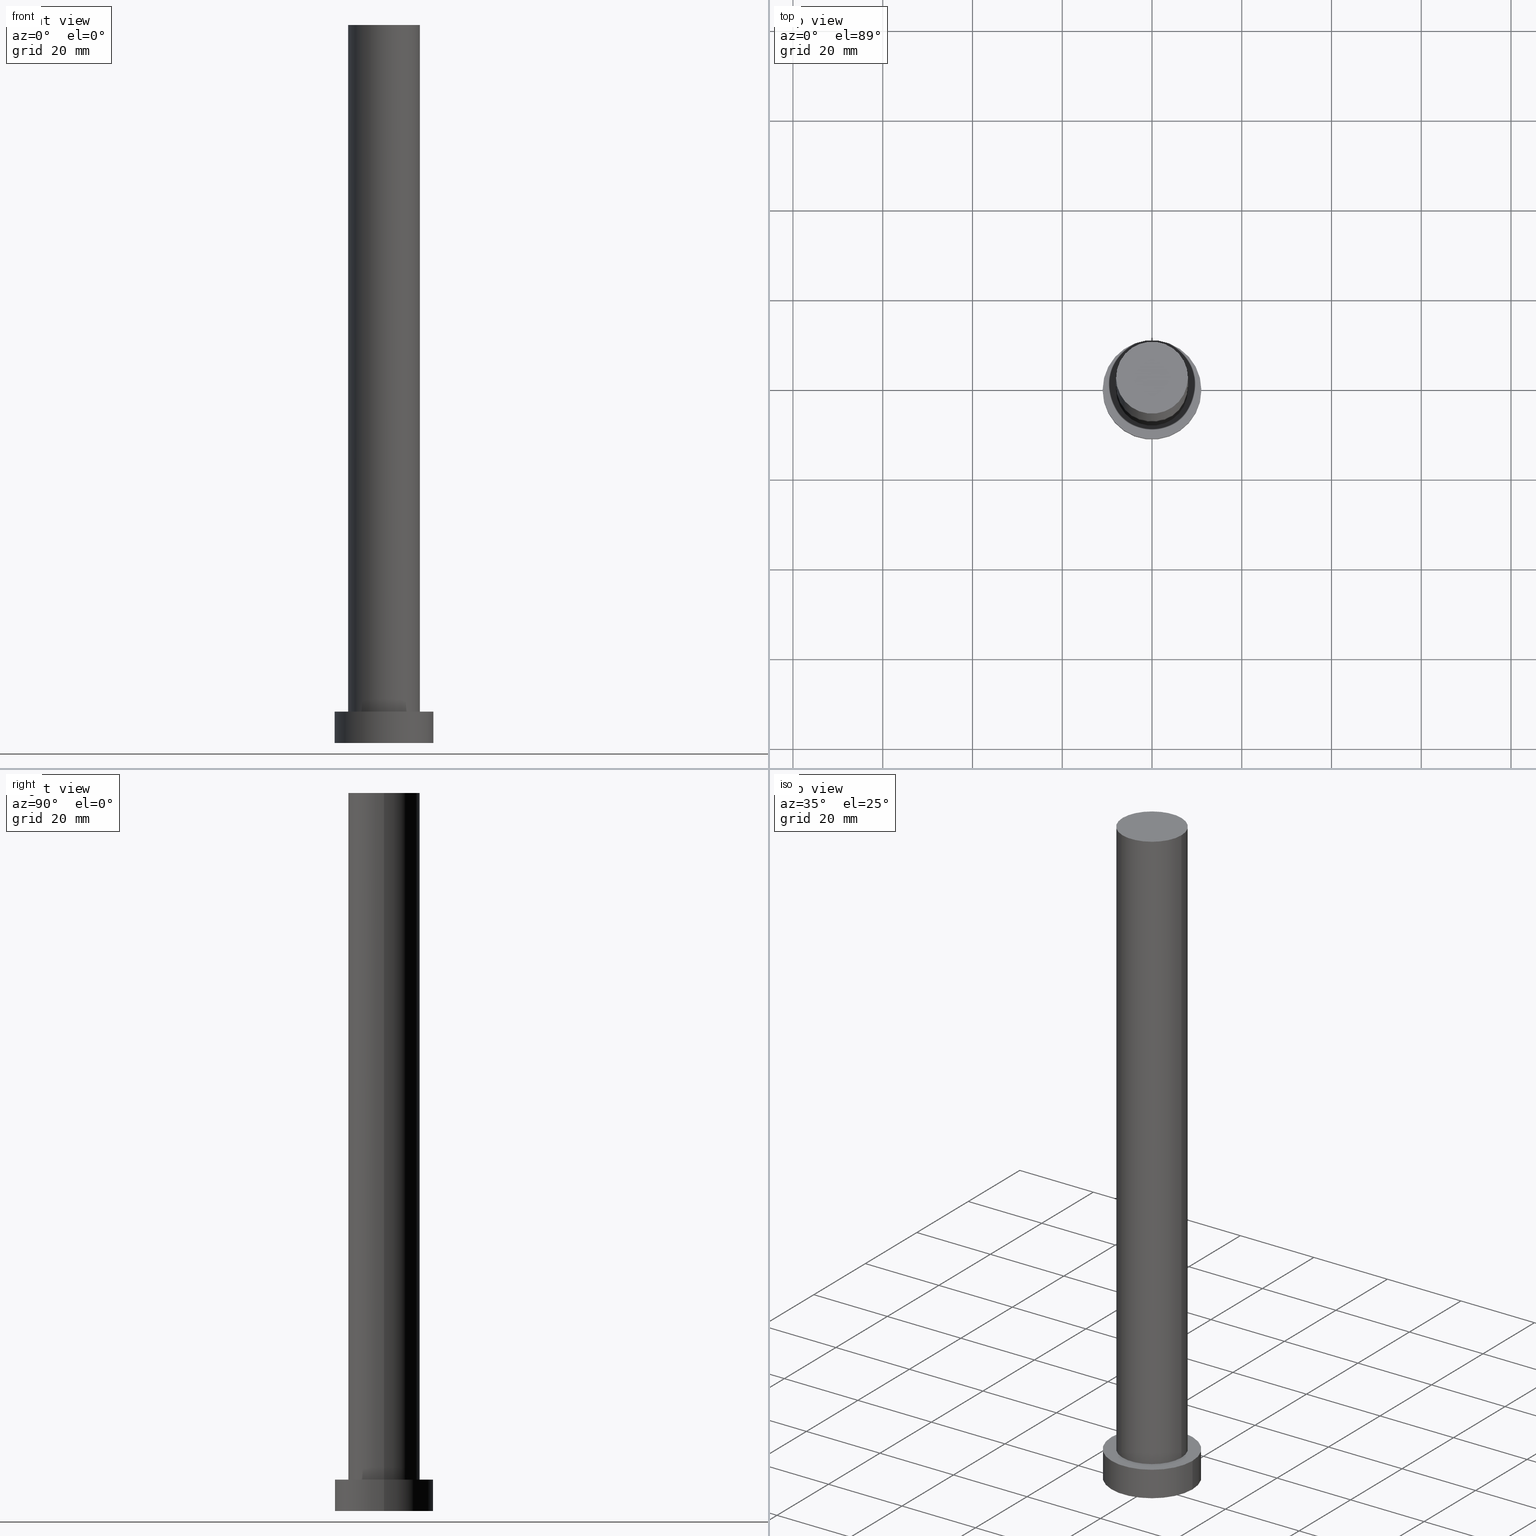
[diagram: canonical four-view strip — front | top / right | iso, engineering-drawing reading convention]
A machine part, canonical four-view strip (front | top / right | iso — engineering-drawing reading convention). The complete STEP part file that produces these views, byte-faithful:
ISO-10303-21;
HEADER;
FILE_DESCRIPTION (( 'STEP AP203' ),
    '1' );
FILE_NAME ('5d08.STEP',
    '2023-02-13T08:53:09',
    ( '' ),
    ( '' ),
    'SwSTEP 2.0',
    'SolidWorks 2019',
    '' );
FILE_SCHEMA (( 'CONFIG_CONTROL_DESIGN' ));
ENDSEC;

DATA;
#1 = CALENDAR_DATE ( 2023, 13, 2 ) ;
#2 = SECURITY_CLASSIFICATION ( '', '', #67 ) ;
#3 = PRODUCT ( '5d08', '5d08', '', ( #92 ) ) ;
#4 = APPLICATION_PROTOCOL_DEFINITION ( 'international standard', 'config_control_design', 1994, #172 ) ;
#5 = CC_DESIGN_SECURITY_CLASSIFICATION ( #2, ( #71 ) ) ;
#6 = DIRECTION ( 'NONE',  ( 0.000000000000000000, 0.000000000000000000, 1.000000000000000000 ) ) ;
#7 = PRODUCT_RELATED_PRODUCT_CATEGORY ( 'detail', '', ( #3 ) ) ;
#8 = APPROVAL_DATE_TIME ( #165, #134 ) ;
#9 = CYLINDRICAL_SURFACE ( 'NONE', #207, 11.00000000000000000 ) ;
#10 = DATE_TIME_ROLE ( 'classification_date' ) ;
#11 = DIRECTION ( 'NONE',  ( 1.000000000000000000, 0.000000000000000000, 0.000000000000000000 ) ) ;
#12 = ADVANCED_FACE ( 'NONE', ( #186 ), #229, .T. ) ;
#13 = FACE_OUTER_BOUND ( 'NONE', #57, .T. ) ;
#14 = CARTESIAN_POINT ( 'NONE',  ( 11.00000000000000000, 1.347111479062088405E-15, 0.000000000000000000 ) ) ;
#15 = DIRECTION ( 'NONE',  ( -0.000000000000000000, -0.000000000000000000, -1.000000000000000000 ) ) ;
#16 = DIRECTION ( 'NONE',  ( 1.000000000000000000, 0.000000000000000000, 0.000000000000000000 ) ) ;
#17 = EDGE_CURVE ( 'NONE', #79, #36, #147, .T. ) ;
#18 =( LENGTH_UNIT ( ) NAMED_UNIT ( * ) SI_UNIT ( .MILLI., .METRE. ) );
#19 = ORIENTED_EDGE ( 'NONE', *, *, #203, .F. ) ;
#20 = AXIS2_PLACEMENT_3D ( 'NONE', #140, #209, #84 ) ;
#21 = DIRECTION ( 'NONE',  ( 1.000000000000000000, 0.000000000000000000, -0.000000000000000000 ) ) ;
#22 = VECTOR ( 'NONE', #129, 1000.000000000000000 ) ;
#23 = ORIENTED_EDGE ( 'NONE', *, *, #232, .F. ) ;
#24 = EDGE_LOOP ( 'NONE', ( #116, #19, #164, #195 ) ) ;
#25 = LOCAL_TIME ( 9, 53, 9.000000000000000000, #236 ) ;
#26 = PERSON_AND_ORGANIZATION ( #43, #130 ) ;
#27 = DIRECTION ( 'NONE',  ( 1.000000000000000000, 0.000000000000000000, 0.000000000000000000 ) ) ;
#28 = CIRCLE ( 'NONE', #174, 8.000000000000000000 ) ;
#29 = LINE ( 'NONE', #213, #219 ) ;
#30 = CC_DESIGN_APPROVAL ( #139, ( #2 ) ) ;
#31 = LINE ( 'NONE', #150, #215 ) ;
#32 = DIRECTION ( 'NONE',  ( 0.000000000000000000, 0.000000000000000000, 1.000000000000000000 ) ) ;
#33 = CARTESIAN_POINT ( 'NONE',  ( 0.000000000000000000, 0.000000000000000000, 7.000000000000000000 ) ) ;
#34 = EDGE_CURVE ( 'NONE', #222, #54, #97, .T. ) ;
#35 = EDGE_LOOP ( 'NONE', ( #166, #23 ) ) ;
#36 = VERTEX_POINT ( 'NONE', #101 ) ;
#37 = VERTEX_POINT ( 'NONE', #103 ) ;
#38 = EDGE_CURVE ( 'NONE', #37, #46, #28, .T. ) ;
#39 = CARTESIAN_POINT ( 'NONE',  ( 0.000000000000000000, 0.000000000000000000, 7.000000000000000000 ) ) ;
#40 = CARTESIAN_POINT ( 'NONE',  ( 0.000000000000000000, 0.000000000000000000, 160.0000000000000000 ) ) ;
#41 = CC_DESIGN_PERSON_AND_ORGANIZATION_ASSIGNMENT ( #102, #98, ( #71 ) ) ;
#42 = CARTESIAN_POINT ( 'NONE',  ( 0.000000000000000000, 0.000000000000000000, 160.0000000000000000 ) ) ;
#43 = PERSON ( 'NEUR�EN�', 'NEUR�EN�', 'NEUR�EN�', ('NEUR�EN�'), ('NEUR�EN�'), ('NEUR�EN�') ) ;
#44 = ORIENTED_EDGE ( 'NONE', *, *, #17, .F. ) ;
#45 = AXIS2_PLACEMENT_3D ( 'NONE', #39, #119, #21 ) ;
#46 = VERTEX_POINT ( 'NONE', #65 ) ;
#47 = AXIS2_PLACEMENT_3D ( 'NONE', #230, #32, #16 ) ;
#48 = EDGE_CURVE ( 'NONE', #36, #79, #113, .T. ) ;
#49 = CALENDAR_DATE ( 2023, 13, 2 ) ;
#50 = DIRECTION ( 'NONE',  ( -1.000000000000000000, 0.000000000000000000, 0.000000000000000000 ) ) ;
#51 = SHAPE_DEFINITION_REPRESENTATION ( #55, #117 ) ;
#52 = DIRECTION ( 'NONE',  ( 1.000000000000000000, 0.000000000000000000, 0.000000000000000000 ) ) ;
#53 = CC_DESIGN_APPROVAL ( #134, ( #71 ) ) ;
#54 = VERTEX_POINT ( 'NONE', #14 ) ;
#55 = PRODUCT_DEFINITION_SHAPE ( 'NONE', 'NONE',  #93 ) ;
#56 = APPLICATION_PROTOCOL_DEFINITION ( 'international standard', 'config_control_design', 1994, #59 ) ;
#57 = EDGE_LOOP ( 'NONE', ( #85, #157 ) ) ;
#58 = AXIS2_PLACEMENT_3D ( 'NONE', #202, #188, #242 ) ;
#59 = APPLICATION_CONTEXT ( 'configuration controlled 3d designs of mechanical parts and assemblies' ) ;
#60 = EDGE_CURVE ( 'NONE', #68, #237, #239, .T. ) ;
#61 = APPROVAL_PERSON_ORGANIZATION ( #187, #134, #201 ) ;
#62 = EDGE_LOOP ( 'NONE', ( #82, #159, #96, #198 ) ) ;
#63 = CARTESIAN_POINT ( 'NONE',  ( 0.000000000000000000, 0.000000000000000000, 7.000000000000000000 ) ) ;
#64 = PERSON_AND_ORGANIZATION_ROLE ( 'design_supplier' ) ;
#65 = CARTESIAN_POINT ( 'NONE',  ( 8.000000000000000000, 9.797174393178825657E-16, 7.000000000000000000 ) ) ;
#66 = ORIENTED_EDGE ( 'NONE', *, *, #200, .F. ) ;
#67 = SECURITY_CLASSIFICATION_LEVEL ( 'unclassified' ) ;
#68 = VERTEX_POINT ( 'NONE', #246 ) ;
#69 = APPROVAL_DATE_TIME ( #111, #139 ) ;
#70 = FACE_OUTER_BOUND ( 'NONE', #178, .T. ) ;
#71 = PRODUCT_DEFINITION_FORMATION_WITH_SPECIFIED_SOURCE ( 'LIBOVOLN�', '', #3, .NOT_KNOWN. ) ;
#72 = LINE ( 'NONE', #216, #22 ) ;
#73 = COORDINATED_UNIVERSAL_TIME_OFFSET ( 1, 0, .AHEAD. ) ;
#74 = CARTESIAN_POINT ( 'NONE',  ( -11.00000000000000000, 0.000000000000000000, 0.000000000000000000 ) ) ;
#75 = DIRECTION ( 'NONE',  ( -0.000000000000000000, -0.000000000000000000, -1.000000000000000000 ) ) ;
#76 = APPROVAL_ROLE ( '' ) ;
#77 = PERSON_AND_ORGANIZATION ( #43, #130 ) ;
#78 = EDGE_LOOP ( 'NONE', ( #135, #66 ) ) ;
#79 = VERTEX_POINT ( 'NONE', #108 ) ;
#80 = DATE_AND_TIME ( #177, #25 ) ;
#81 = CIRCLE ( 'NONE', #235, 8.000000000000000000 ) ;
#82 = ORIENTED_EDGE ( 'NONE', *, *, #60, .F. ) ;
#83 = DIRECTION ( 'NONE',  ( -0.000000000000000000, -0.000000000000000000, -1.000000000000000000 ) ) ;
#84 = DIRECTION ( 'NONE',  ( 1.000000000000000000, 0.000000000000000000, 0.000000000000000000 ) ) ;
#85 = ORIENTED_EDGE ( 'NONE', *, *, #203, .T. ) ;
#86 = ADVANCED_FACE ( 'NONE', ( #204 ), #190, .F. ) ;
#87 = CARTESIAN_POINT ( 'NONE',  ( 0.000000000000000000, 0.000000000000000000, 0.000000000000000000 ) ) ;
#88 = DIRECTION ( 'NONE',  ( -0.000000000000000000, -0.000000000000000000, -1.000000000000000000 ) ) ;
#89 = CIRCLE ( 'NONE', #47, 11.00000000000000000 ) ;
#90 = DIRECTION ( 'NONE',  ( -0.000000000000000000, -0.000000000000000000, -1.000000000000000000 ) ) ;
#91 = CARTESIAN_POINT ( 'NONE',  ( 0.000000000000000000, 0.000000000000000000, 7.000000000000000000 ) ) ;
#92 = MECHANICAL_CONTEXT ( 'NONE', #172, 'mechanical' ) ;
#93 = PRODUCT_DEFINITION ( 'NEZN�M�', '', #71, #197 ) ;
#94 = AXIS2_PLACEMENT_3D ( 'NONE', #87, #224, #184 ) ;
#95 = ADVANCED_FACE ( 'NONE', ( #144 ), #9, .T. ) ;
#96 = ORIENTED_EDGE ( 'NONE', *, *, #232, .T. ) ;
#97 = CIRCLE ( 'NONE', #58, 11.00000000000000000 ) ;
#98 = PERSON_AND_ORGANIZATION_ROLE ( 'creator' ) ;
#99 = CARTESIAN_POINT ( 'NONE',  ( 0.000000000000000000, 0.000000000000000000, 160.0000000000000000 ) ) ;
#100 = AXIS2_PLACEMENT_3D ( 'NONE', #218, #238, #223 ) ;
#101 = CARTESIAN_POINT ( 'NONE',  ( 8.000000000000000000, 9.797174393178825657E-16, 160.0000000000000000 ) ) ;
#102 = PERSON_AND_ORGANIZATION ( #43, #130 ) ;
#103 = CARTESIAN_POINT ( 'NONE',  ( -8.000000000000000000, 0.000000000000000000, 7.000000000000000000 ) ) ;
#104 = MANIFOLD_SOLID_BREP ( 'P�idat vysunut�m3', #194 ) ;
#105 = DIRECTION ( 'NONE',  ( -0.000000000000000000, -0.000000000000000000, -1.000000000000000000 ) ) ;
#106 = AXIS2_PLACEMENT_3D ( 'NONE', #33, #109, #168 ) ;
#107 = APPROVAL_STATUS ( 'not_yet_approved' ) ;
#108 = CARTESIAN_POINT ( 'NONE',  ( -8.000000000000000000, 0.000000000000000000, 160.0000000000000000 ) ) ;
#109 = DIRECTION ( 'NONE',  ( 0.000000000000000000, 0.000000000000000000, 1.000000000000000000 ) ) ;
#110 = CIRCLE ( 'NONE', #106, 11.00000000000000000 ) ;
#111 = DATE_AND_TIME ( #49, #240 ) ;
#112 = DIRECTION ( 'NONE',  ( 1.000000000000000000, 0.000000000000000000, -0.000000000000000000 ) ) ;
#113 = CIRCLE ( 'NONE', #180, 8.000000000000000000 ) ;
#114 = CC_DESIGN_DATE_AND_TIME_ASSIGNMENT ( #225, #10, ( #2 ) ) ;
#115 = LOCAL_TIME ( 9, 53, 9.000000000000000000, #208 ) ;
#116 = ORIENTED_EDGE ( 'NONE', *, *, #185, .F. ) ;
#117 = ADVANCED_BREP_SHAPE_REPRESENTATION ( '5d08', ( #104, #100 ), #120 ) ;
#118 = PERSON_AND_ORGANIZATION ( #43, #130 ) ;
#119 = DIRECTION ( 'NONE',  ( 0.000000000000000000, 0.000000000000000000, 1.000000000000000000 ) ) ;
#120 =( GEOMETRIC_REPRESENTATION_CONTEXT ( 3 ) GLOBAL_UNCERTAINTY_ASSIGNED_CONTEXT ( ( #152 ) ) GLOBAL_UNIT_ASSIGNED_CONTEXT ( ( #18, #253, #199 ) ) REPRESENTATION_CONTEXT ( 'NONE', 'WORKASPACE' ) );
#121 = DIRECTION ( 'NONE',  ( -0.000000000000000000, -0.000000000000000000, -1.000000000000000000 ) ) ;
#122 = EDGE_LOOP ( 'NONE', ( #156, #226 ) ) ;
#123 = ADVANCED_FACE ( 'NONE', ( #70 ), #163, .T. ) ;
#124 = PERSON_AND_ORGANIZATION_ROLE ( 'classification_officer' ) ;
#125 = CARTESIAN_POINT ( 'NONE',  ( 0.000000000000000000, 0.000000000000000000, 160.0000000000000000 ) ) ;
#126 = APPROVAL_PERSON_ORGANIZATION ( #26, #139, #158 ) ;
#127 = CARTESIAN_POINT ( 'NONE',  ( -8.000000000000000000, 0.000000000000000000, 160.0000000000000000 ) ) ;
#128 = CARTESIAN_POINT ( 'NONE',  ( 0.000000000000000000, 0.000000000000000000, 7.000000000000000000 ) ) ;
#129 = DIRECTION ( 'NONE',  ( -0.000000000000000000, -0.000000000000000000, -1.000000000000000000 ) ) ;
#130 = ORGANIZATION ( 'NEUR�EN�', 'NEUR�EN�', '' ) ;
#131 = PLANE ( 'NONE',  #252 ) ;
#132 = ADVANCED_FACE ( 'NONE', ( #167, #13 ), #148, .T. ) ;
#133 = AXIS2_PLACEMENT_3D ( 'NONE', #99, #105, #146 ) ;
#134 = APPROVAL ( #161, 'NEUR�EN�' ) ;
#135 = ORIENTED_EDGE ( 'NONE', *, *, #38, .F. ) ;
#136 = ORIENTED_EDGE ( 'NONE', *, *, #214, .F. ) ;
#137 = LOCAL_TIME ( 9, 53, 9.000000000000000000, #233 ) ;
#138 = ORIENTED_EDGE ( 'NONE', *, *, #38, .T. ) ;
#139 = APPROVAL ( #107, 'NEUR�EN�' ) ;
#140 = CARTESIAN_POINT ( 'NONE',  ( 0.000000000000000000, 0.000000000000000000, 7.000000000000000000 ) ) ;
#141 = AXIS2_PLACEMENT_3D ( 'NONE', #40, #6, #206 ) ;
#142 = DIRECTION ( 'NONE',  ( -1.000000000000000000, 0.000000000000000000, 0.000000000000000000 ) ) ;
#143 = CC_DESIGN_APPROVAL ( #160, ( #93 ) ) ;
#144 = FACE_OUTER_BOUND ( 'NONE', #62, .T. ) ;
#145 = DATE_TIME_ROLE ( 'creation_date' ) ;
#146 = DIRECTION ( 'NONE',  ( -1.000000000000000000, 0.000000000000000000, 0.000000000000000000 ) ) ;
#147 = CIRCLE ( 'NONE', #141, 8.000000000000000000 ) ;
#148 = PLANE ( 'NONE',  #45 ) ;
#149 = LINE ( 'NONE', #127, #189 ) ;
#150 = CARTESIAN_POINT ( 'NONE',  ( 11.00000000000000000, 1.347111479062088405E-15, 7.000000000000000000 ) ) ;
#151 = ADVANCED_FACE ( 'NONE', ( #182 ), #250, .T. ) ;
#152 = UNCERTAINTY_MEASURE_WITH_UNIT (LENGTH_MEASURE( 1.000000000000000082E-05 ), #18, 'distance_accuracy_value', 'NONE');
#153 = ORIENTED_EDGE ( 'NONE', *, *, #179, .T. ) ;
#154 = CC_DESIGN_PERSON_AND_ORGANIZATION_ASSIGNMENT ( #77, #155, ( #93 ) ) ;
#155 = PERSON_AND_ORGANIZATION_ROLE ( 'creator' ) ;
#156 = ORIENTED_EDGE ( 'NONE', *, *, #17, .T. ) ;
#157 = ORIENTED_EDGE ( 'NONE', *, *, #60, .T. ) ;
#158 = APPROVAL_ROLE ( '' ) ;
#159 = ORIENTED_EDGE ( 'NONE', *, *, #185, .T. ) ;
#160 = APPROVAL ( #255, 'NEUR�EN�' ) ;
#161 = APPROVAL_STATUS ( 'not_yet_approved' ) ;
#162 = ORIENTED_EDGE ( 'NONE', *, *, #179, .F. ) ;
#163 = CYLINDRICAL_SURFACE ( 'NONE', #193, 8.000000000000000000 ) ;
#164 = ORIENTED_EDGE ( 'NONE', *, *, #254, .T. ) ;
#165 = DATE_AND_TIME ( #183, #210 ) ;
#166 = ORIENTED_EDGE ( 'NONE', *, *, #34, .F. ) ;
#167 = FACE_BOUND ( 'NONE', #78, .T. ) ;
#168 = DIRECTION ( 'NONE',  ( 1.000000000000000000, 0.000000000000000000, 0.000000000000000000 ) ) ;
#169 = CC_DESIGN_PERSON_AND_ORGANIZATION_ASSIGNMENT ( #181, #64, ( #71 ) ) ;
#170 = APPROVAL_PERSON_ORGANIZATION ( #173, #160, #76 ) ;
#171 = CARTESIAN_POINT ( 'NONE',  ( 0.000000000000000000, 0.000000000000000000, 160.0000000000000000 ) ) ;
#172 = APPLICATION_CONTEXT ( 'configuration controlled 3d designs of mechanical parts and assemblies' ) ;
#173 = PERSON_AND_ORGANIZATION ( #43, #130 ) ;
#174 = AXIS2_PLACEMENT_3D ( 'NONE', #63, #248, #27 ) ;
#175 = PERSON_AND_ORGANIZATION_ROLE ( 'design_owner' ) ;
#176 = ORIENTED_EDGE ( 'NONE', *, *, #200, .T. ) ;
#177 = CALENDAR_DATE ( 2023, 13, 2 ) ;
#178 = EDGE_LOOP ( 'NONE', ( #241, #221, #176, #162 ) ) ;
#179 = EDGE_CURVE ( 'NONE', #79, #37, #149, .T. ) ;
#180 = AXIS2_PLACEMENT_3D ( 'NONE', #125, #249, #11 ) ;
#181 = PERSON_AND_ORGANIZATION ( #43, #130 ) ;
#182 = FACE_OUTER_BOUND ( 'NONE', #24, .T. ) ;
#183 = CALENDAR_DATE ( 2023, 13, 2 ) ;
#184 = DIRECTION ( 'NONE',  ( 1.000000000000000000, 0.000000000000000000, -0.000000000000000000 ) ) ;
#185 = EDGE_CURVE ( 'NONE', #68, #54, #31, .T. ) ;
#186 = FACE_OUTER_BOUND ( 'NONE', #234, .T. ) ;
#187 = PERSON_AND_ORGANIZATION ( #43, #130 ) ;
#188 = DIRECTION ( 'NONE',  ( 0.000000000000000000, 0.000000000000000000, 1.000000000000000000 ) ) ;
#189 = VECTOR ( 'NONE', #15, 1000.000000000000000 ) ;
#190 = PLANE ( 'NONE',  #94 ) ;
#191 = CC_DESIGN_DATE_AND_TIME_ASSIGNMENT ( #80, #145, ( #93 ) ) ;
#192 = FACE_OUTER_BOUND ( 'NONE', #122, .T. ) ;
#193 = AXIS2_PLACEMENT_3D ( 'NONE', #42, #121, #227 ) ;
#194 = CLOSED_SHELL ( 'NONE', ( #123, #95, #151, #132, #86, #12, #247 ) ) ;
#195 = ORIENTED_EDGE ( 'NONE', *, *, #34, .T. ) ;
#196 = APPROVAL_DATE_TIME ( #220, #160 ) ;
#197 = DESIGN_CONTEXT ( 'detailed design', #59, 'design' ) ;
#198 = ORIENTED_EDGE ( 'NONE', *, *, #254, .F. ) ;
#199 =( NAMED_UNIT ( * ) SI_UNIT ( $, .STERADIAN. ) SOLID_ANGLE_UNIT ( ) );
#200 = EDGE_CURVE ( 'NONE', #46, #37, #81, .T. ) ;
#201 = APPROVAL_ROLE ( '' ) ;
#202 = CARTESIAN_POINT ( 'NONE',  ( 0.000000000000000000, 0.000000000000000000, 0.000000000000000000 ) ) ;
#203 = EDGE_CURVE ( 'NONE', #237, #68, #110, .T. ) ;
#204 = FACE_OUTER_BOUND ( 'NONE', #35, .T. ) ;
#205 = CALENDAR_DATE ( 2023, 13, 2 ) ;
#206 = DIRECTION ( 'NONE',  ( 1.000000000000000000, 0.000000000000000000, 0.000000000000000000 ) ) ;
#207 = AXIS2_PLACEMENT_3D ( 'NONE', #244, #83, #142 ) ;
#208 = COORDINATED_UNIVERSAL_TIME_OFFSET ( 1, 0, .AHEAD. ) ;
#209 = DIRECTION ( 'NONE',  ( 0.000000000000000000, 0.000000000000000000, 1.000000000000000000 ) ) ;
#210 = LOCAL_TIME ( 9, 53, 9.000000000000000000, #243 ) ;
#211 = CC_DESIGN_PERSON_AND_ORGANIZATION_ASSIGNMENT ( #118, #175, ( #3 ) ) ;
#212 = CARTESIAN_POINT ( 'NONE',  ( -11.00000000000000000, 0.000000000000000000, 7.000000000000000000 ) ) ;
#213 = CARTESIAN_POINT ( 'NONE',  ( -11.00000000000000000, 0.000000000000000000, 7.000000000000000000 ) ) ;
#214 = EDGE_CURVE ( 'NONE', #36, #46, #72, .T. ) ;
#215 = VECTOR ( 'NONE', #88, 1000.000000000000000 ) ;
#216 = CARTESIAN_POINT ( 'NONE',  ( 8.000000000000000000, 9.797174393178825657E-16, 160.0000000000000000 ) ) ;
#217 = DIRECTION ( 'NONE',  ( 0.000000000000000000, 0.000000000000000000, 1.000000000000000000 ) ) ;
#218 = CARTESIAN_POINT ( 'NONE',  ( 0.000000000000000000, 0.000000000000000000, 0.000000000000000000 ) ) ;
#219 = VECTOR ( 'NONE', #90, 1000.000000000000000 ) ;
#220 = DATE_AND_TIME ( #1, #137 ) ;
#221 = ORIENTED_EDGE ( 'NONE', *, *, #214, .T. ) ;
#222 = VERTEX_POINT ( 'NONE', #74 ) ;
#223 = DIRECTION ( 'NONE',  ( 1.000000000000000000, 0.000000000000000000, 0.000000000000000000 ) ) ;
#224 = DIRECTION ( 'NONE',  ( 0.000000000000000000, 0.000000000000000000, 1.000000000000000000 ) ) ;
#225 = DATE_AND_TIME ( #205, #115 ) ;
#226 = ORIENTED_EDGE ( 'NONE', *, *, #48, .T. ) ;
#227 = DIRECTION ( 'NONE',  ( -1.000000000000000000, 0.000000000000000000, 0.000000000000000000 ) ) ;
#228 = PERSON_AND_ORGANIZATION ( #43, #130 ) ;
#229 = CYLINDRICAL_SURFACE ( 'NONE', #133, 8.000000000000000000 ) ;
#230 = CARTESIAN_POINT ( 'NONE',  ( 0.000000000000000000, 0.000000000000000000, 0.000000000000000000 ) ) ;
#231 = DIRECTION ( 'NONE',  ( 0.000000000000000000, 0.000000000000000000, 1.000000000000000000 ) ) ;
#232 = EDGE_CURVE ( 'NONE', #54, #222, #89, .T. ) ;
#233 = COORDINATED_UNIVERSAL_TIME_OFFSET ( 1, 0, .AHEAD. ) ;
#234 = EDGE_LOOP ( 'NONE', ( #136, #44, #153, #138 ) ) ;
#235 = AXIS2_PLACEMENT_3D ( 'NONE', #128, #231, #52 ) ;
#236 = COORDINATED_UNIVERSAL_TIME_OFFSET ( 1, 0, .AHEAD. ) ;
#237 = VERTEX_POINT ( 'NONE', #212 ) ;
#238 = DIRECTION ( 'NONE',  ( 0.000000000000000000, 0.000000000000000000, 1.000000000000000000 ) ) ;
#239 = CIRCLE ( 'NONE', #20, 11.00000000000000000 ) ;
#240 = LOCAL_TIME ( 9, 53, 9.000000000000000000, #73 ) ;
#241 = ORIENTED_EDGE ( 'NONE', *, *, #48, .F. ) ;
#242 = DIRECTION ( 'NONE',  ( 1.000000000000000000, 0.000000000000000000, 0.000000000000000000 ) ) ;
#243 = COORDINATED_UNIVERSAL_TIME_OFFSET ( 1, 0, .AHEAD. ) ;
#244 = CARTESIAN_POINT ( 'NONE',  ( 0.000000000000000000, 0.000000000000000000, 7.000000000000000000 ) ) ;
#245 = AXIS2_PLACEMENT_3D ( 'NONE', #91, #75, #50 ) ;
#246 = CARTESIAN_POINT ( 'NONE',  ( 11.00000000000000000, 1.347111479062088405E-15, 7.000000000000000000 ) ) ;
#247 = ADVANCED_FACE ( 'NONE', ( #192 ), #131, .T. ) ;
#248 = DIRECTION ( 'NONE',  ( 0.000000000000000000, 0.000000000000000000, 1.000000000000000000 ) ) ;
#249 = DIRECTION ( 'NONE',  ( 0.000000000000000000, 0.000000000000000000, 1.000000000000000000 ) ) ;
#250 = CYLINDRICAL_SURFACE ( 'NONE', #245, 11.00000000000000000 ) ;
#251 = CC_DESIGN_PERSON_AND_ORGANIZATION_ASSIGNMENT ( #228, #124, ( #2 ) ) ;
#252 = AXIS2_PLACEMENT_3D ( 'NONE', #171, #217, #112 ) ;
#253 =( NAMED_UNIT ( * ) PLANE_ANGLE_UNIT ( ) SI_UNIT ( $, .RADIAN. ) );
#254 = EDGE_CURVE ( 'NONE', #237, #222, #29, .T. ) ;
#255 = APPROVAL_STATUS ( 'not_yet_approved' ) ;
ENDSEC;
END-ISO-10303-21;
